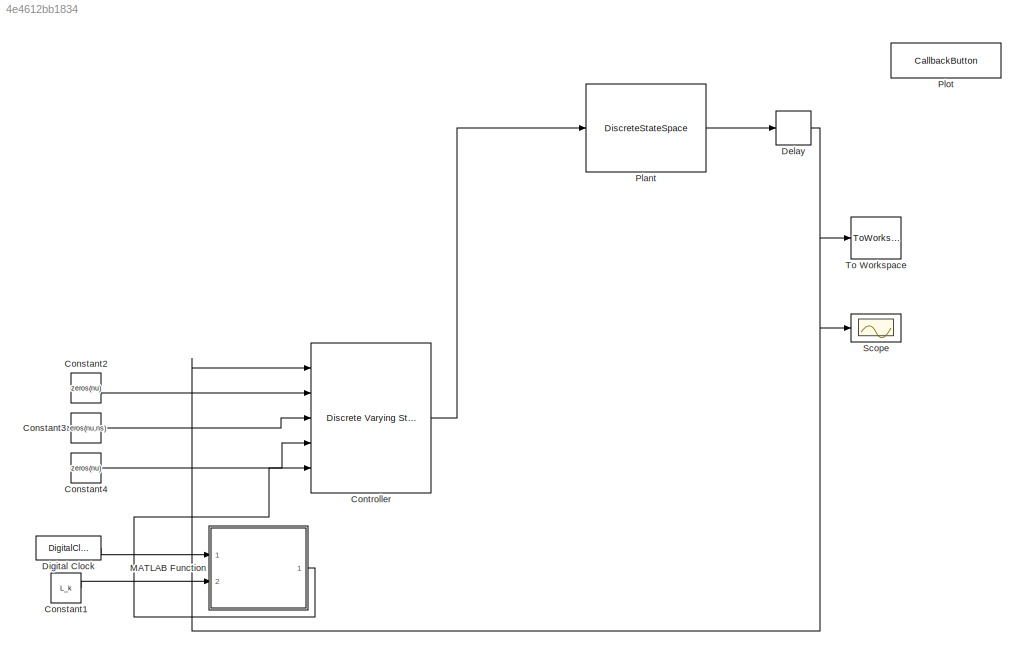
MODEL slx_4e4612bb1834
KIND model
CONFIG AbsTol = auto
CONFIG EnableMultiTasking = off
CONFIG FixedStep = auto
CONFIG MaxStep = auto
CONFIG MinStep = auto
CONFIG RelTol = 1e-3
CONFIG SampleTimeConstraint = Unconstrained
CONFIG Solver = VariableStepAuto
CONFIG SolverName = VariableStepAuto
CONFIG StartTime = 0.0
CONFIG StopTime = 1.49
BLOCK [Constant] Constant1
  Value = L_k
BLOCK [Constant] Constant2
  SampleTime = dt
  Value = zeros(nu)
BLOCK [Constant] Constant3
  SampleTime = dt
  Value = zeros(nu,ns)
BLOCK [Constant] Constant4
  SampleTime = dt
  Value = zeros(nu)
BLOCK [Reference] Controller   REF=cstblocks/Linear Parameter Varying/Discrete Varying State Space
  Ports = [5, 1]
  SourceBlock = cstblocks/Linear Parameter Varying/Discrete Varying State Space
  SourceProductBaseCode = CT
  SourceProductName = Control System Toolbox
  SourceType = Discrete Varying State Space
BLOCK [Delay] Delay
  DelayLength = delay
  InitialCondition = repmat(x_init, 1, delay)
  InputPortMap = u0
  InputProcessing = Inherited
  Ports = [1, 1]
  SampleTime = dt
BLOCK [DigitalClock] Digital Clock
  SampleTime = dt
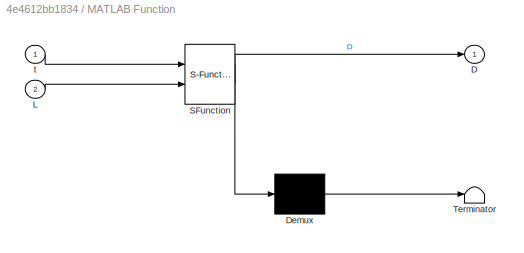
BLOCK [SubSystem] MATLAB Function
  ErrorFcn = Stateflow.Translate.translate
  PermitHierarchicalResolution = ExplicitOnly
  Ports = [2, 1]
  RequestExecContextInheritance = off
  SFBlockType = MATLAB Function
  TreatAsAtomicUnit = on
BLOCK [Demux] MATLAB Function/ Demux 
  Outputs = 1
  Ports = [1, 1]
BLOCK [S-Function] MATLAB Function/ SFunction 
  EnableBusSupport = on
  FunctionName = sf_sfun
  PortCounts = [2 2]
  Ports = [2, 2]
  SFcnIsStateOwnerBlock = off
  SFunctionDeploymentMode = off
  Tag = Stateflow S-Function my_block_diagram 2
BLOCK [Terminator] MATLAB Function/ Terminator 
BLOCK [Outport] MATLAB Function/D
  IconDisplay = Port number
BLOCK [Inport] MATLAB Function/L
  IconDisplay = Port number
  Port = 2
BLOCK [Inport] MATLAB Function/t
  IconDisplay = Port number
BLOCK [DiscreteStateSpace] Plant 
  A = A_d
  B = B_d
  C = C_d
  D = D_d
  InitialCondition = x_init
  SampleTime = dt
BLOCK [CallbackButton] Plot
  ButtonText = Plot results
  ClickFcn = subplot(2,2,1);\nplot(dt*linspace(0,1.5,N),yout(:,1))\nsubplot(2,2,2);\nplot(dt*linspace(0,1.5,N),yout(:,2))\nsubplot(2,2,3);\nplot(dt*linspace(0,1.5,N),yout(:,3))\nsubplot(2,2,4);\nplot(dt*linspace(0,1.5,N),yout(:,4))
  WebBlockId = 47
BLOCK [Scope] Scope
  Floating = off
  NumInputPorts = 1
  Ports = [1]
  ScopeSpecificationString = Simulink.scopes.TimeScopeBlockCfg('CurrentConfiguration', extmgr.ConfigurationSet(extmgr.Configuration('Core','General UI',true),extmgr.Configuration('Core','Source UI',true),extmgr.Configuration('Sources','WiredSimulink',true),extmgr.Configuration('Visuals','Time Domain',true,'SerializedDisplays',{struct('MinYLimReal','-3.47643','MaxYLimReal','3.51899','YLabelReal','','MinYLimMag','0.00000','MaxY...<+1406ch>
BLOCK [ToWorkspace] To Workspace
  MaxDataPoints = inf
  Ports = [1]
  SampleTime = -1
  Save2DSignal = 2-D array (concatenate along first dimension)
  VariableName = yout
LINE Constant1:1 -> MATLAB Function:2
LINE Constant2:1 -> Controller :2
LINE Constant3:1 -> Controller :3
LINE Constant4:1 -> Controller :4
LINE Controller :1 -> Plant :1
NET Delay:1 -> Controller :1, Scope:1, To Workspace:1
LINE Digital Clock:1 -> MATLAB Function:1
LINE MATLAB Function:1 -> Controller :5
LINE Plant :1 -> Delay:1
note: NET lines group one-source signal fan-out (src -> all destinations, sorted); 1:1 wires keep LINE
CHART MATLAB Function states=1 transitions=1
  STATE_LABEL 'eML_blk_kernel()'
  STATE_LABEL 'SCRIPT:\nfunction D = fcn(t, L)\n\nindex = t+0.01;\nindex = round(index/0.01);\nD = -squeeze(L(index,:,:));\n'
